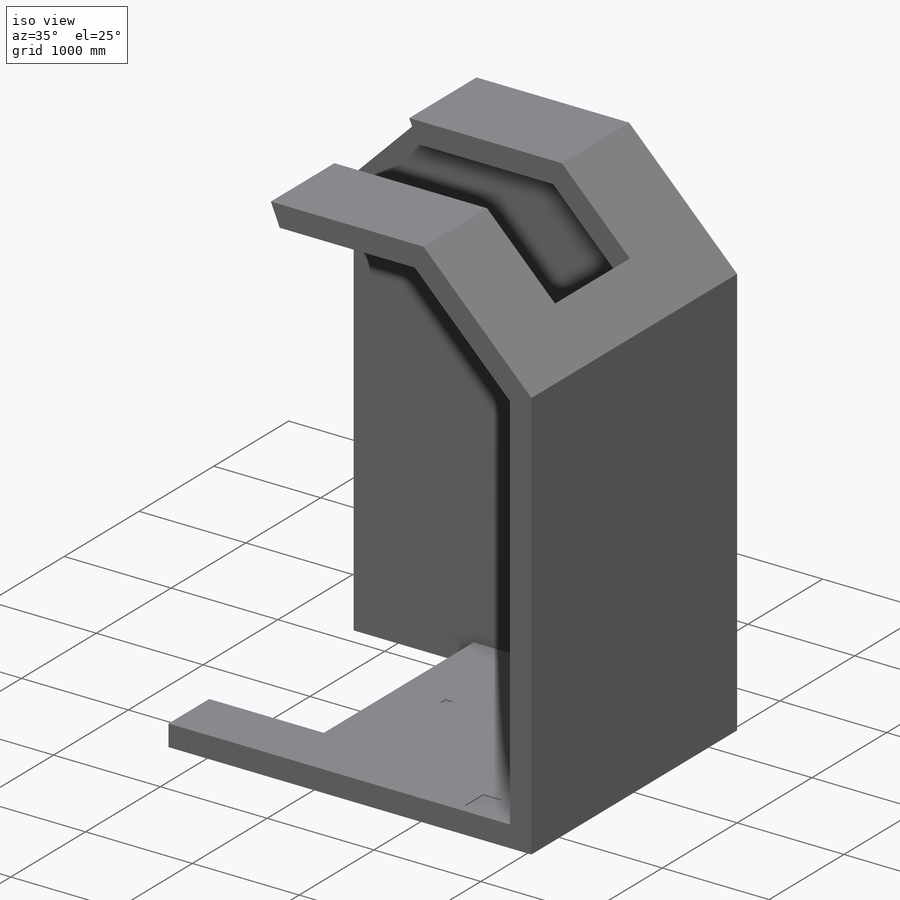
[diagram: iso view]
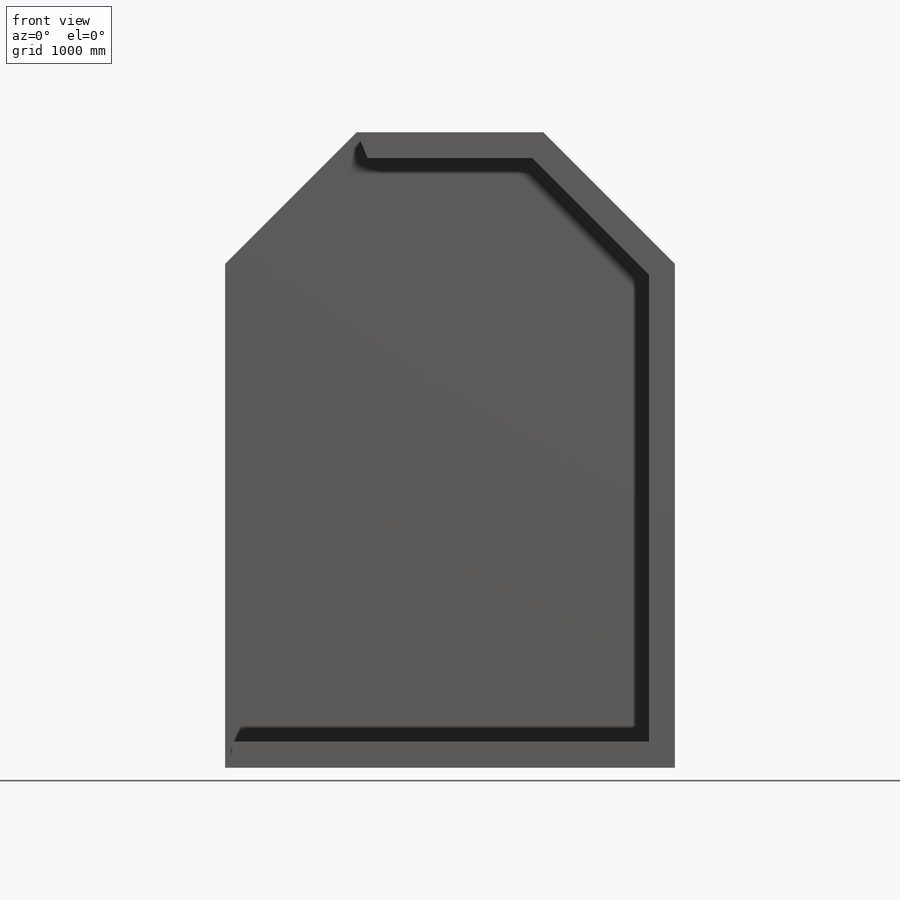
[diagram: front view]
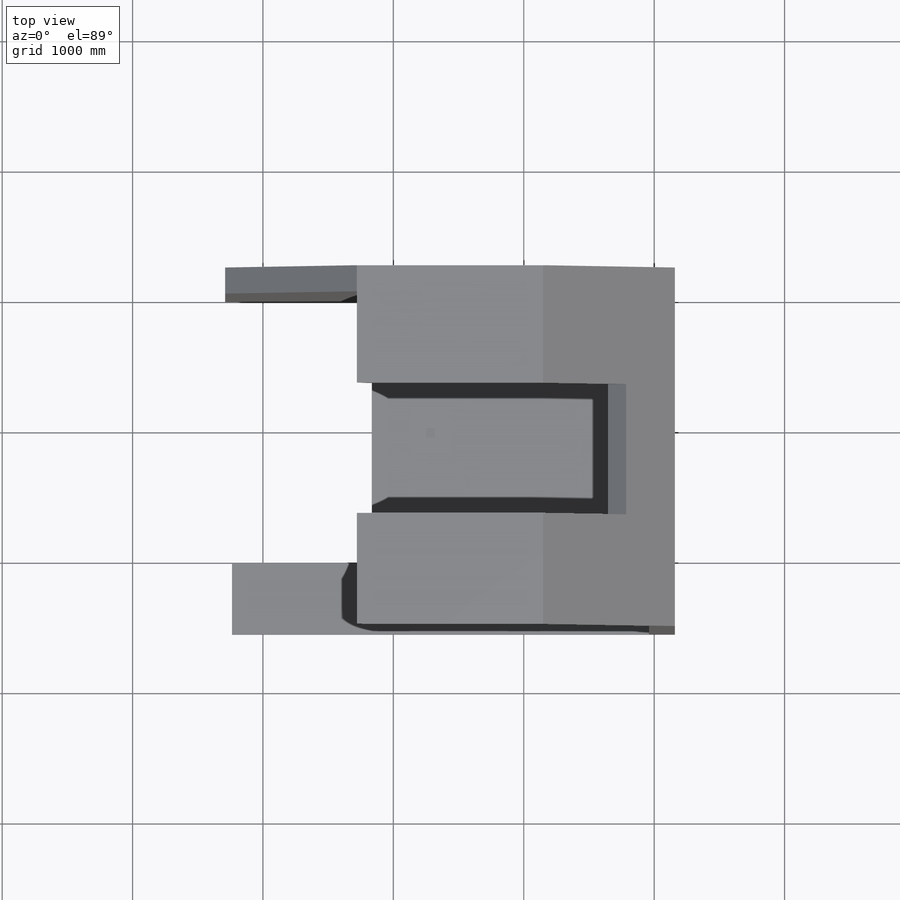
[diagram: top view]
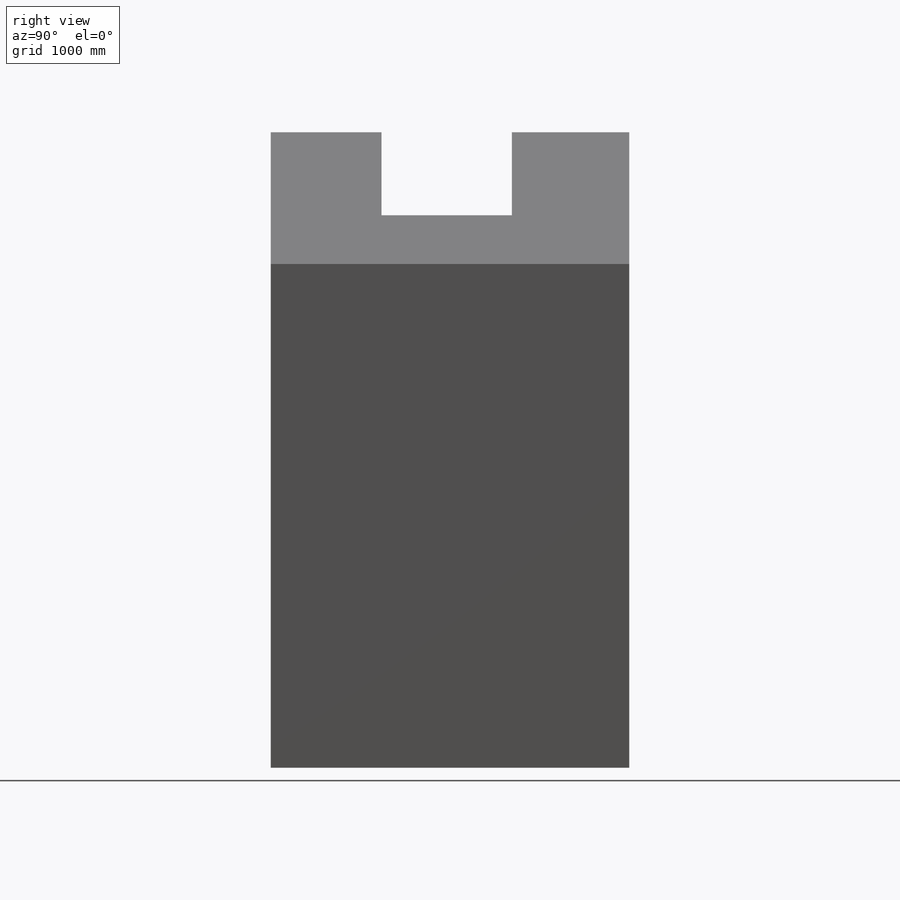
[diagram: right view]
SOLIDWORKS PART (.sldprt)
format: sldprt  version: not decoded by parser v0  size: 347,648 bytes
history: native  units: mm
features: sketch x10, cut_extrude x6, extrude x4, material x1 (+12 scaffold rows collapsed)
feature tree (33):
  scaffold x12  (default folders/planes/origin — collapsed)
  material  "Material <not specified>"
  sketch  "Sketch1"  dims[c1.D1=~59.399934mm c2.D1=135.0deg c2.D2=~84.000365mm c3.D2=135.0deg c3.D3=3050.0mm c3.D4=200.0mm c3.D5=200.0mm c3.D6=200.0mm c3.D7=3060.0mm c3.D8=5560.0mm c3.D9=3370.0mm c3.D10=1500.0mm c3.D11=3070.0mm c3.D12=3070.0mm c3.D13=200.0mm c3.D14=4570.0mm c3.D15=2000.0mm c3.D16=~945.714667mm c4.D16=135.0deg c4.D17=2500.0mm c4.D18=2590.0mm c4.D19=1440.0mm c4.D20=1500.0mm c4.D4=200.0mm c4.D21=5051.0mm c4.D22=3370.0mm c4.D9=1410.0mm c5.D21=200.0mm c5.D23=200.0mm c5.D24=200.0mm c5.D25=200.0mm c5.D26=200.0mm c5.D27=200.0mm c5.D28=200.0mm c5.D29=200.0mm c5.D30=200.0mm c5.D31=200.0mm c5.D32=200.0mm c5.D33=200.0mm c6.D26=200.0mm c6.D9=200.0mm c6.D24=200.0mm c6.D25=200.0mm c6.D13=150.0mm c7.D26=150.0mm c7.D30=200.0mm c7.D31=200.0mm c7.D34=200.0mm c7.D35=200.0mm c7.D36=~6667.596809mm c7.D4=3580.0mm c7.D5=2125.0mm c7.D1=200.0mm c8.D1=112.5deg c8.D6=~1263.351365mm c9.D6=90.0deg c10.D6=200.0mm c11.D6=112.5deg]
  extrude  "Base"  Depth=2550mm
  sketch  "Sketch5"
  extrude  "Floor"  Depth=200mm
  sketch  "Sketch13"  dims[D1=900.0mm D2=1000.0mm D3=900.0mm]
  cut_extrude  "Window right"  [1 undecoded]
  sketch  "Sketch14"
  cut_extrude  "Window center"  Depth=500mm
  sketch  "Sketch8"  dims[D1=210.0mm D2=400.0mm D3=250.0mm D4=170.0mm]
  cut_extrude  "Ventilation"  Depth=10mm
  sketch  "Sketch9"  dims[c1.D4=30.0mm c1.D5=65.0mm c1.D1=520.0mm c1.D2=~608.528895mm c2.D2=90.0deg c3.D2=400.0mm c3.D3=285.0mm c3.D6=75.0mm c3.D7=715.0mm c3.D8=70.0mm c3.D9=1675.0mm c3.D10=1005.0mm]
  cut_extrude  "Socket & pipes"  Depth=10mm
  sketch  "Sketch10"  dims[c1.D1=100.0mm c1.D2=140.0mm c1.D3=140.0mm c2.D1=100.0mm c2.D2=70.0mm c2.D3=140.0mm c2.D4=1145.0mm c2.D5=1505.0mm c2.D6=1145.0mm c2.D7=1360.0mm]
  cut_extrude  "Socket"  Depth=5mm
  sketch  "Sketch12"
  extrude  "Door high wall"  Depth=200mm
  sketch  "Sketch6"
  extrude  "Wall"  Depth=2550mm
  sketch  "Sketch15"  dims[D1=900.0mm]
  cut_extrude  "Window left"  Depth=500mm
decode coverage: 15 of 20 modeling features carry decoded parameters
note: ~ marks probable driven/reference dimensions
note: 1 parameter value undecoded
note: suppression state not decoded; provenance and decode notes live in map.json
